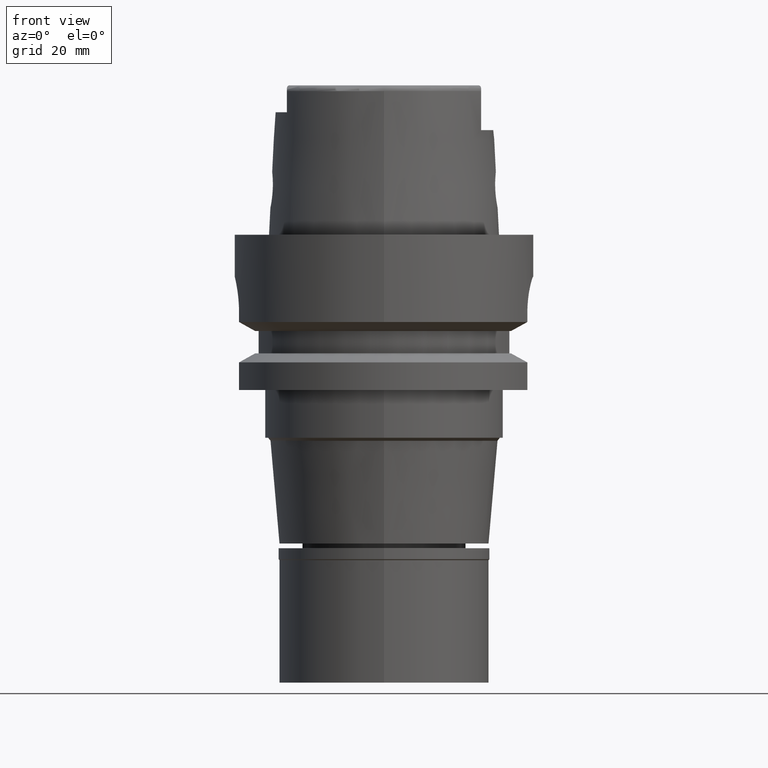
[diagram: clean part render]
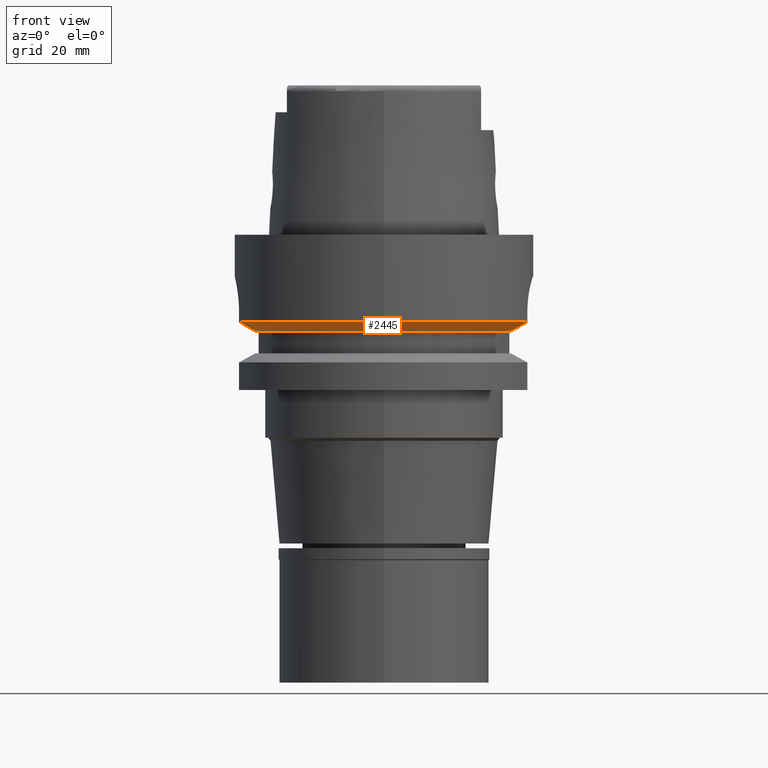
[diagram: same view with one face highlighted and labeled with its STEP entity id]
A machine part, front view. The second image highlights one B-rep face of the part: STEP entity #2445.
In plain terms, the highlighted conical surface has half-angle 60 deg.
Its self-contained STEP definition (entity closure, byte-faithful):
#138 = VERTEX_POINT ( 'NONE', #4638 ) ;
#403 = ORIENTED_EDGE ( 'NONE', *, *, #2174, .F. ) ;
#577 = ORIENTED_EDGE ( 'NONE', *, *, #2923, .F. ) ;
#621 = ORIENTED_EDGE ( 'NONE', *, *, #4563, .T. ) ;
#625 = ORIENTED_EDGE ( 'NONE', *, *, #4685, .F. ) ;
#887 = CARTESIAN_POINT ( 'NONE',  ( -21.57897427818999958, -6.000000209407000185, -16.12500000000000000 ) ) ;
#1069 = DIRECTION ( 'NONE',  ( -0.9707728879609262007, -0.2400000000000065414, 0.0000000000000000000 ) ) ;
#1143 = CARTESIAN_POINT ( 'NONE',  ( 0.0000000000000000000, 0.0000000000000000000, -14.62250092523999889 ) ) ;
#1167 = VERTEX_POINT ( 'NONE', #3015 ) ;
#1198 = CARTESIAN_POINT ( 'NONE',  ( -23.35244680697000064, -5.999999718384000147, -15.13601362964999986 ) ) ;
#1310 = CARTESIAN_POINT ( 'NONE',  ( -24.26932203503999830, -6.000000663293000081, -14.62249455490000116 ) ) ;
#1368 = VERTEX_POINT ( 'NONE', #1509 ) ;
#1508 = CIRCLE ( 'NONE', #4611, 22.39759526418999869 ) ;
#1509 = CARTESIAN_POINT ( 'NONE',  ( 24.00000006387999818, -6.999999780973000796, -14.62250272691999875 ) ) ;
#1661 = CARTESIAN_POINT ( 'NONE',  ( 0.0000000000000000000, 0.0000000000000000000, -15.37375046262000033 ) ) ;
#1695 = DIRECTION ( 'NONE',  ( 0.0000000000000000000, 0.0000000000000000000, 1.000000000000000000 ) ) ;
#1772 = VERTEX_POINT ( 'NONE', #887 ) ;
#1945 = DIRECTION ( 'NONE',  ( 0.0000000000000000000, -1.000000000000000000, 0.0000000000000000000 ) ) ;
#2008 = CARTESIAN_POINT ( 'NONE',  ( 23.68765764108999861, -6.999999780973000796, -14.79562047090999855 ) ) ;
#2076 = FACE_OUTER_BOUND ( 'NONE', #2944, .T. ) ;
#2174 = EDGE_CURVE ( 'NONE', #138, #1368, #2450, .T. ) ;
#2185 = AXIS2_PLACEMENT_3D ( 'NONE', #5366, #4055, #1945 ) ;
#2396 = CARTESIAN_POINT ( 'NONE',  ( 21.27564230999000117, -6.999998840136999689, -16.12500000000000000 ) ) ;
#2445 = ADVANCED_FACE ( 'NONE', ( #2076 ), #4338, .T. ) ;
#2450 = CIRCLE ( 'NONE', #2185, 25.00000000000000000 ) ;
#2730 = B_SPLINE_CURVE_WITH_KNOTS ( 'NONE', 3,
 ( #3394, #2948, #4596, #1198, #5131, #1310 ),
 .UNSPECIFIED., .F., .F.,
 ( 4, 1, 1, 4 ),
 ( 0.0000000000000000000, 0.3333333333333000081, 0.6666666666667000474, 1.000000000000000000 ),
 .UNSPECIFIED. ) ;
#2808 = DIRECTION ( 'NONE',  ( 0.0000000000000000000, 0.0000000000000000000, 1.000000000000000000 ) ) ;
#2837 = DIRECTION ( 'NONE',  ( 0.0000000000000000000, 0.0000000000000000000, 1.000000000000000000 ) ) ;
#2923 = EDGE_CURVE ( 'NONE', #1368, #1167, #3437, .T. ) ;
#2944 = EDGE_LOOP ( 'NONE', ( #625, #621, #577, #403, #4052 ) ) ;
#2948 = CARTESIAN_POINT ( 'NONE',  ( -21.86930277987999816, -6.000000209407000185, -15.96350521099999753 ) ) ;
#2988 = AXIS2_PLACEMENT_3D ( 'NONE', #1661, #1695, #5093 ) ;
#3015 = CARTESIAN_POINT ( 'NONE',  ( 21.27564230999000117, -6.999998840136999689, -16.12500000000000000 ) ) ;
#3030 = EDGE_CURVE ( 'NONE', #3891, #138, #3710, .T. ) ;
#3394 = CARTESIAN_POINT ( 'NONE',  ( -21.57897427818999958, -6.000000209407000185, -16.12500000000000000 ) ) ;
#3437 = B_SPLINE_CURVE_WITH_KNOTS ( 'NONE', 3,
 ( #4071, #2008, #3699, #3615, #3591, #2396 ),
 .UNSPECIFIED., .F., .F.,
 ( 4, 1, 1, 4 ),
 ( 0.0000000000000000000, 0.3333333333333000081, 0.6666666666667000474, 1.000000000000000000 ),
 .UNSPECIFIED. ) ;
#3591 = CARTESIAN_POINT ( 'NONE',  ( 21.56871410970000014, -6.999998840136999689, -15.96427094626999832 ) ) ;
#3615 = CARTESIAN_POINT ( 'NONE',  ( 22.16129676326000109, -7.000000512066000269, -15.63861918332000123 ) ) ;
#3699 = CARTESIAN_POINT ( 'NONE',  ( 23.06940324490000194, -6.999999947564000458, -15.13776104312999848 ) ) ;
#3710 = CIRCLE ( 'NONE', #4884, 24.99999999999999645 ) ;
#3891 = VERTEX_POINT ( 'NONE', #4448 ) ;
#4052 = ORIENTED_EDGE ( 'NONE', *, *, #3030, .F. ) ;
#4055 = DIRECTION ( 'NONE',  ( 0.0000000000000000000, 0.0000000000000000000, 1.000000000000000000 ) ) ;
#4071 = CARTESIAN_POINT ( 'NONE',  ( 24.00000006387999818, -6.999999780973000796, -14.62250272691999875 ) ) ;
#4338 = CONICAL_SURFACE ( 'NONE', #2988, 23.69879763209999979, 1.047197551196400456 ) ;
#4448 = CARTESIAN_POINT ( 'NONE',  ( -24.26932203503999830, -6.000000663293000081, -14.62249455490000116 ) ) ;
#4491 = CARTESIAN_POINT ( 'NONE',  ( 0.0000000000000000000, 0.0000000000000000000, -16.12500000000000000 ) ) ;
#4563 = EDGE_CURVE ( 'NONE', #1772, #1167, #1508, .T. ) ;
#4596 = CARTESIAN_POINT ( 'NONE',  ( -22.45567631214000315, -5.999999990716000653, -15.63687026059000118 ) ) ;
#4611 = AXIS2_PLACEMENT_3D ( 'NONE', #4491, #2808, #4919 ) ;
#4638 = CARTESIAN_POINT ( 'NONE',  ( 0.0000000000000000000, -25.00000000000000000, -14.62250092523999889 ) ) ;
#4685 = EDGE_CURVE ( 'NONE', #1772, #3891, #2730, .T. ) ;
#4884 = AXIS2_PLACEMENT_3D ( 'NONE', #1143, #2837, #1069 ) ;
#4919 = DIRECTION ( 'NONE',  ( 0.0000000000000000000, -1.000000000000000000, 0.0000000000000000000 ) ) ;
#5093 = DIRECTION ( 'NONE',  ( 0.0000000000000000000, 1.000000000000000000, 0.0000000000000000000 ) ) ;
#5131 = CARTESIAN_POINT ( 'NONE',  ( -23.96177434461999667, -6.000000663293000081, -14.79486764711000113 ) ) ;
#5366 = CARTESIAN_POINT ( 'NONE',  ( 0.0000000000000000000, 0.0000000000000000000, -14.62250092523999889 ) ) ;